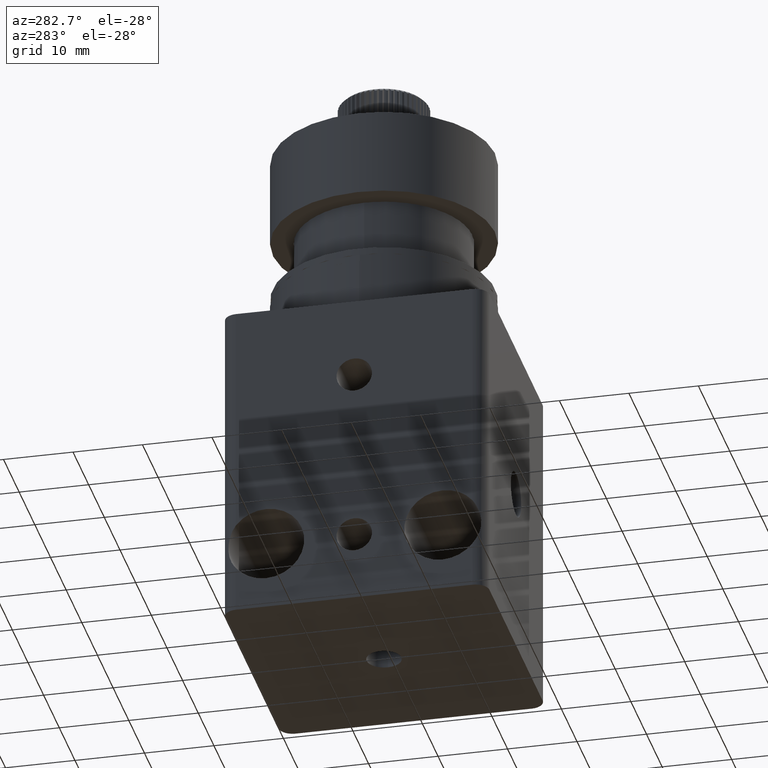
[diagram: clean part render]
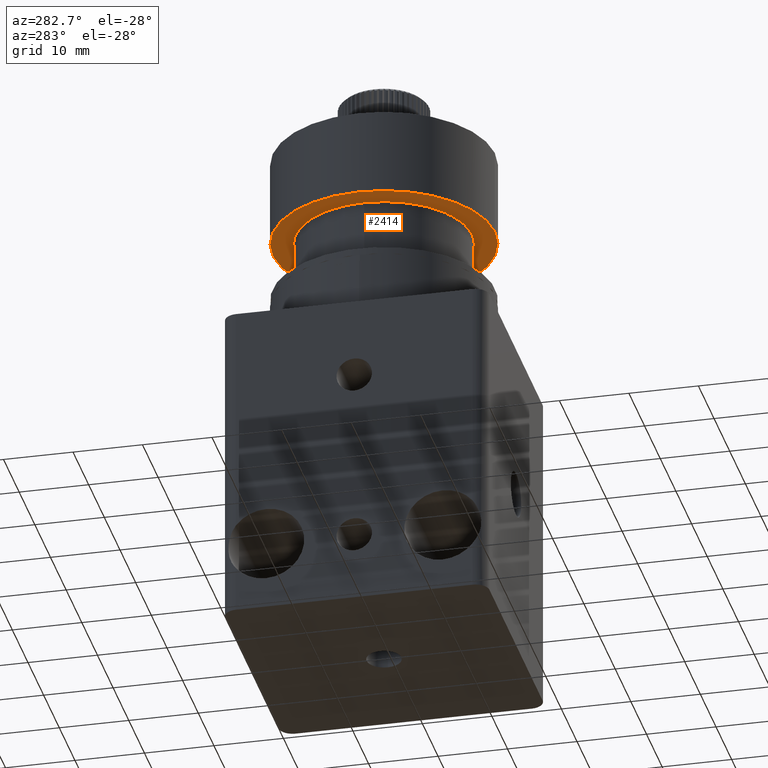
[diagram: same view with one face highlighted and labeled with its STEP entity id]
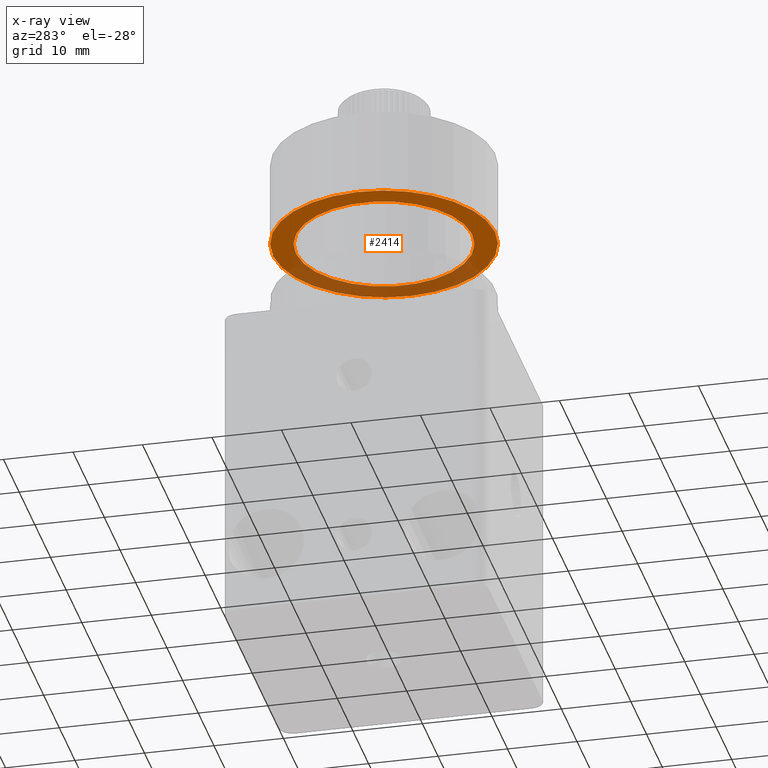
[diagram: x-ray of the same camera — body ghosted, the highlighted face saturated]
A machine part, auxiliary view. The second image highlights one B-rep face of the part: STEP entity #2414.
The next image is the same camera in x-ray: the body ghosted, the highlighted face saturated — about 34% of this face is hidden behind the body in this view.
In plain terms, the highlighted planar face has unit normal (0, 0, -1).
Its self-contained STEP definition (entity closure, byte-faithful):
#11 = DIRECTION ( 'NONE',  ( 0.01559016713970653300, 0.9998784659590164200, 0.0000000000000000000 ) ) ;
#161 = CARTESIAN_POINT ( 'NONE',  ( 52.82532685223226600, 41.65691868999380200, 65.15325513704509300 ) ) ;
#293 = ORIENTED_EDGE ( 'NONE', *, *, #4286, .F. ) ;
#364 = AXIS2_PLACEMENT_3D ( 'NONE', #161, #2769, #5351 ) ;
#611 = CARTESIAN_POINT ( 'NONE',  ( 52.82532685223226600, 41.65691868999380200, 65.15325513704509300 ) ) ;
#835 = EDGE_CURVE ( 'NONE', #1902, #3698, #4237, .T. ) ;
#898 = EDGE_LOOP ( 'NONE', ( #2534, #293 ) ) ;
#906 = ORIENTED_EDGE ( 'NONE', *, *, #955, .T. ) ;
#955 = EDGE_CURVE ( 'NONE', #2678, #6836, #4616, .T. ) ;
#1228 = DIRECTION ( 'NONE',  ( 0.01559016713970638000, 0.9998784659590164200, 0.0000000000000000000 ) ) ;
#1768 = CIRCLE ( 'NONE', #7163, 15.99999999999999600 ) ;
#1902 = VERTEX_POINT ( 'NONE', #2675 ) ;
#1945 = PLANE ( 'NONE',  #364 ) ;
#2414 = ADVANCED_FACE ( 'NONE', ( #6040, #2547 ), #1945, .T. ) ;
#2534 = ORIENTED_EDGE ( 'NONE', *, *, #835, .F. ) ;
#2547 = FACE_OUTER_BOUND ( 'NONE', #8137, .T. ) ;
#2675 = CARTESIAN_POINT ( 'NONE',  ( 53.02332197490653700, 54.35537520767330500, 65.15325513704509300 ) ) ;
#2678 = VERTEX_POINT ( 'NONE', #6181 ) ;
#2769 = DIRECTION ( 'NONE',  ( 0.0000000000000000000, 0.0000000000000000000, -1.000000000000000000 ) ) ;
#2955 = AXIS2_PLACEMENT_3D ( 'NONE', #8188, #7511, #4195 ) ;
#3043 = CARTESIAN_POINT ( 'NONE',  ( 52.82532685223226600, 41.65691868999380200, 65.15325513704509300 ) ) ;
#3698 = VERTEX_POINT ( 'NONE', #5441 ) ;
#3851 = DIRECTION ( 'NONE',  ( 0.0000000000000000000, 0.0000000000000000000, -1.000000000000000000 ) ) ;
#4195 = DIRECTION ( 'NONE',  ( 0.01559016713970638000, 0.9998784659590164200, 0.0000000000000000000 ) ) ;
#4237 = CIRCLE ( 'NONE', #4422, 12.69999999999999800 ) ;
#4251 = CARTESIAN_POINT ( 'NONE',  ( 52.57588417799696100, 25.65886323464953700, 65.15325513704509300 ) ) ;
#4286 = EDGE_CURVE ( 'NONE', #3698, #1902, #8230, .T. ) ;
#4422 = AXIS2_PLACEMENT_3D ( 'NONE', #611, #3851, #11 ) ;
#4616 = CIRCLE ( 'NONE', #2955, 15.99999999999999600 ) ;
#4921 = EDGE_CURVE ( 'NONE', #6836, #2678, #1768, .T. ) ;
#5351 = DIRECTION ( 'NONE',  ( 0.01559016713970645800, 0.9998784659590164200, 0.0000000000000000000 ) ) ;
#5441 = CARTESIAN_POINT ( 'NONE',  ( 52.62733172955798700, 28.95846217231429200, 65.15325513704509300 ) ) ;
#6040 = FACE_BOUND ( 'NONE', #898, .T. ) ;
#6181 = CARTESIAN_POINT ( 'NONE',  ( 53.07476952646756300, 57.65497414533805900, 65.15325513704509300 ) ) ;
#6326 = AXIS2_PLACEMENT_3D ( 'NONE', #8231, #8183, #8149 ) ;
#6836 = VERTEX_POINT ( 'NONE', #4251 ) ;
#7163 = AXIS2_PLACEMENT_3D ( 'NONE', #3043, #7537, #1228 ) ;
#7511 = DIRECTION ( 'NONE',  ( 0.0000000000000000000, 0.0000000000000000000, -1.000000000000000000 ) ) ;
#7514 = ORIENTED_EDGE ( 'NONE', *, *, #4921, .T. ) ;
#7537 = DIRECTION ( 'NONE',  ( 0.0000000000000000000, 0.0000000000000000000, -1.000000000000000000 ) ) ;
#8137 = EDGE_LOOP ( 'NONE', ( #7514, #906 ) ) ;
#8149 = DIRECTION ( 'NONE',  ( 0.01559016713970653300, 0.9998784659590164200, 0.0000000000000000000 ) ) ;
#8183 = DIRECTION ( 'NONE',  ( 0.0000000000000000000, 0.0000000000000000000, -1.000000000000000000 ) ) ;
#8188 = CARTESIAN_POINT ( 'NONE',  ( 52.82532685223226600, 41.65691868999380200, 65.15325513704509300 ) ) ;
#8230 = CIRCLE ( 'NONE', #6326, 12.69999999999999800 ) ;
#8231 = CARTESIAN_POINT ( 'NONE',  ( 52.82532685223226600, 41.65691868999380200, 65.15325513704509300 ) ) ;